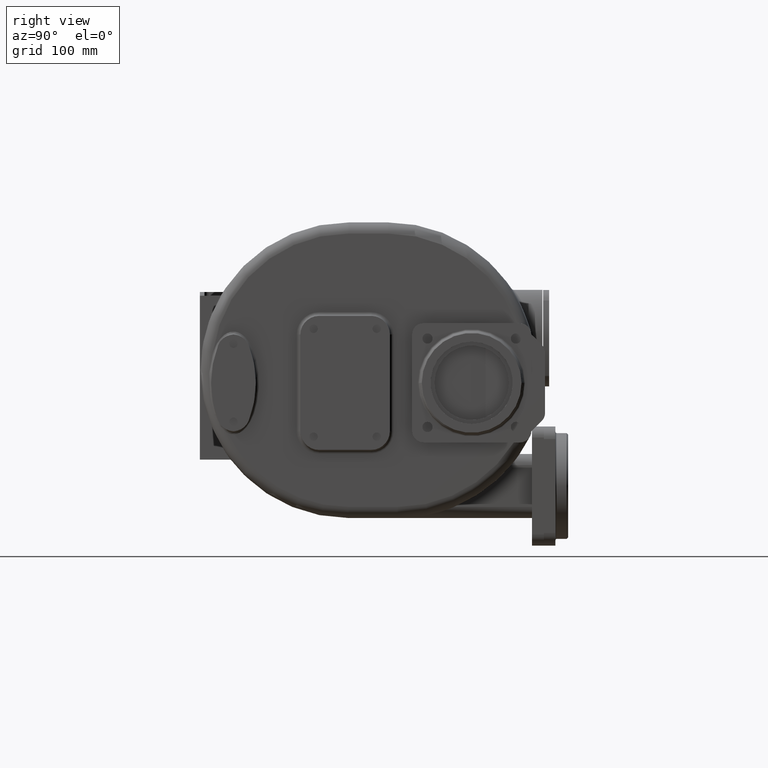
[diagram: clean part render]
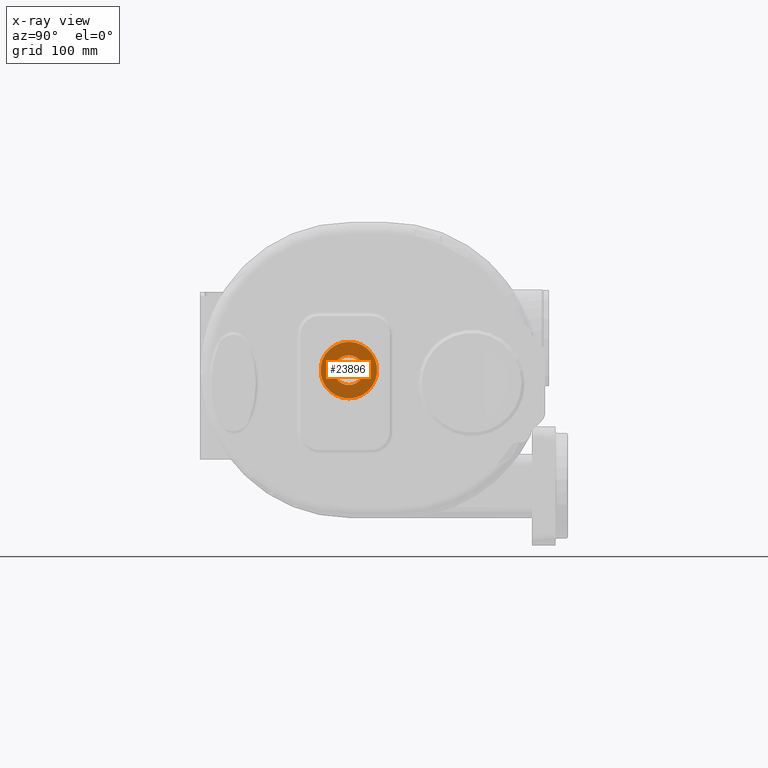
[diagram: x-ray — body ghosted, one internal face saturated and labeled with its STEP entity id]
A machine part, right view, then the same camera in x-ray: the body is ghosted and one INTERNAL B-rep face — a face not visible from any outside direction — is saturated and labeled: STEP entity #23896.
In plain terms, the highlighted planar face has unit normal (-1, 0, 0).
Its self-contained STEP definition (entity closure, byte-faithful):
#8928=CARTESIAN_POINT('',(-3.935E2,2.E2,0.E0));
#8929=DIRECTION('',(1.E0,0.E0,0.E0));
#8930=DIRECTION('',(0.E0,0.E0,-1.E0));
#8931=AXIS2_PLACEMENT_3D('',#8928,#8929,#8930);
#8933=CARTESIAN_POINT('',(-3.935E2,2.E2,0.E0));
#8934=DIRECTION('',(1.E0,0.E0,0.E0));
#8935=DIRECTION('',(0.E0,0.E0,1.E0));
#8936=AXIS2_PLACEMENT_3D('',#8933,#8934,#8935);
#8938=CARTESIAN_POINT('',(-3.935E2,2.E2,0.E0));
#8939=DIRECTION('',(1.E0,0.E0,0.E0));
#8940=DIRECTION('',(0.E0,0.E0,-1.E0));
#8941=AXIS2_PLACEMENT_3D('',#8938,#8939,#8940);
#8943=CARTESIAN_POINT('',(-3.935E2,2.E2,0.E0));
#8944=DIRECTION('',(1.E0,0.E0,0.E0));
#8945=DIRECTION('',(0.E0,0.E0,1.E0));
#8946=AXIS2_PLACEMENT_3D('',#8943,#8944,#8945);
#11201=CARTESIAN_POINT('',(-3.935E2,2.E2,-2.E1));
#11202=CARTESIAN_POINT('',(-3.935E2,2.E2,2.E1));
#11203=VERTEX_POINT('',#11201);
#11204=VERTEX_POINT('',#11202);
#11265=CARTESIAN_POINT('',(-3.935E2,2.E2,-3.8E1));
#11266=CARTESIAN_POINT('',(-3.935E2,2.E2,3.8E1));
#11267=VERTEX_POINT('',#11265);
#11268=VERTEX_POINT('',#11266);
#23880=CARTESIAN_POINT('',(-3.935E2,2.E2,0.E0));
#23881=DIRECTION('',(-1.E0,0.E0,0.E0));
#23882=DIRECTION('',(0.E0,-1.E0,0.E0));
#23883=AXIS2_PLACEMENT_3D('',#23880,#23881,#23882);
#23884=PLANE('',#23883);
#23886=ORIENTED_EDGE('',*,*,#23885,.T.);
#23887=ORIENTED_EDGE('',*,*,#23870,.T.);
#23888=EDGE_LOOP('',(#23886,#23887));
#23889=FACE_OUTER_BOUND('',#23888,.F.);
#23891=ORIENTED_EDGE('',*,*,#23890,.F.);
#23893=ORIENTED_EDGE('',*,*,#23892,.F.);
#23894=EDGE_LOOP('',(#23891,#23893));
#23895=FACE_BOUND('',#23894,.F.);
#23896=ADVANCED_FACE('',(#23889,#23895),#23884,.T.);
#8932=CIRCLE('',#8931,3.8E1);
#8937=CIRCLE('',#8936,3.8E1);
#8942=CIRCLE('',#8941,2.E1);
#8947=CIRCLE('',#8946,2.E1);
#23870=EDGE_CURVE('',#11268,#11267,#8937,.T.);
#23885=EDGE_CURVE('',#11267,#11268,#8932,.T.);
#23890=EDGE_CURVE('',#11203,#11204,#8942,.T.);
#23892=EDGE_CURVE('',#11204,#11203,#8947,.T.);